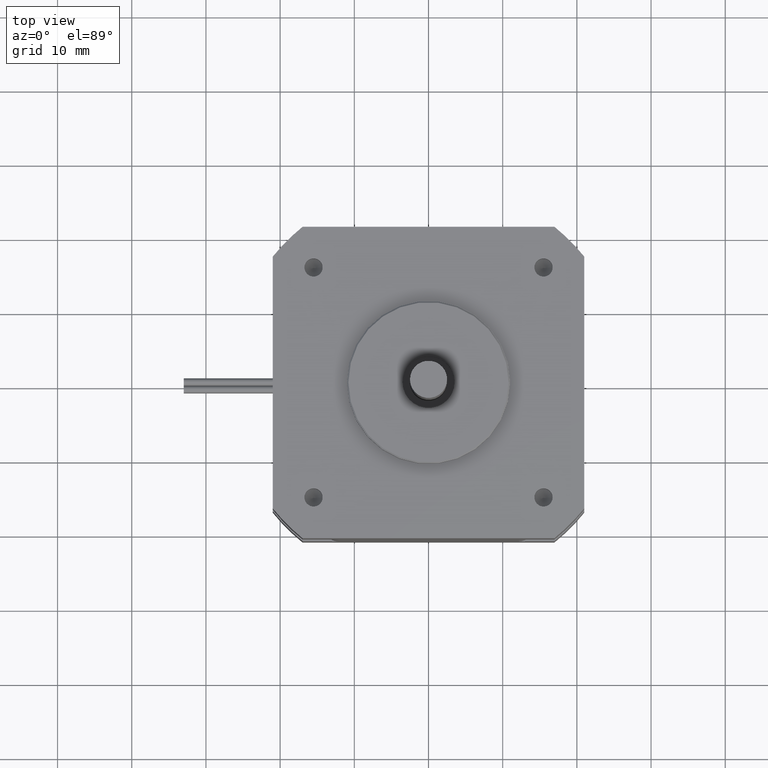
[diagram: clean part render]
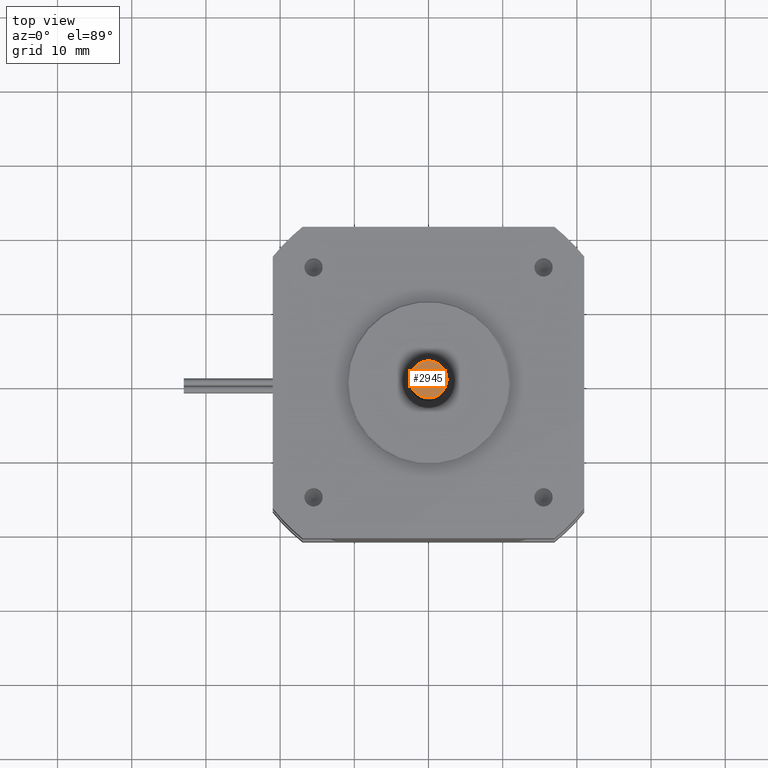
[diagram: same view with one face highlighted and labeled with its STEP entity id]
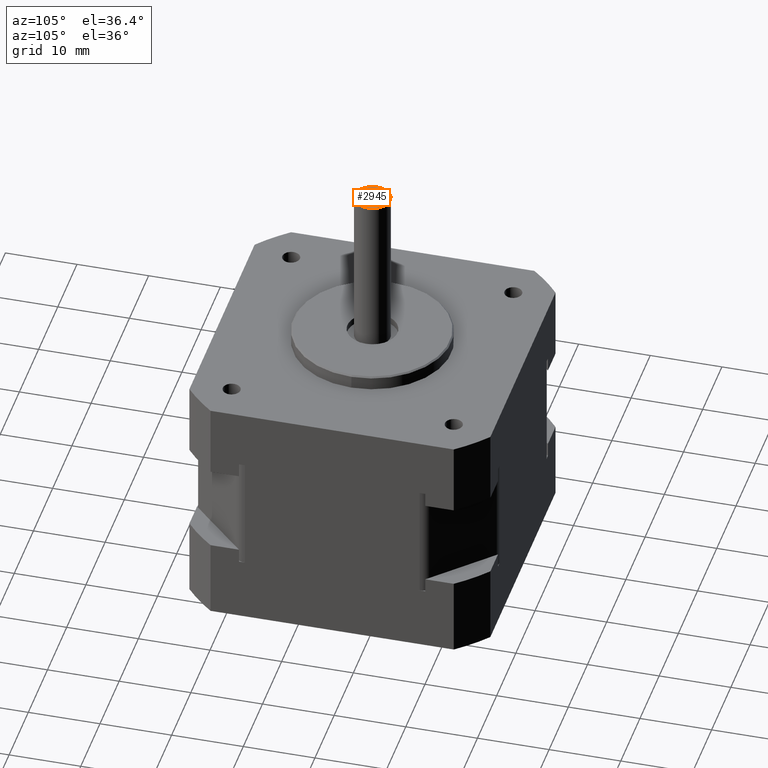
[diagram: same view with one face highlighted and labeled with its STEP entity id]
A machine part, top view. The second image highlights one B-rep face of the part: STEP entity #2945.
A second angle (auxiliary view) of the same face is appended — the face is thin or edge-on in the first view.
In plain terms, the highlighted planar face has unit normal (0, 0, 1).
Its self-contained STEP definition (entity closure, byte-faithful):
#229=PLANE('',#3350);
#425=FACE_OUTER_BOUND('',#689,.T.);
#689=EDGE_LOOP('',(#2500));
#1183=CIRCLE('',#3347,2.5);
#1420=VERTEX_POINT('',#5069);
#1771=EDGE_CURVE('',#1420,#1420,#1183,.T.);
#2500=ORIENTED_EDGE('',*,*,#1771,.T.);
#2945=ADVANCED_FACE('',(#425),#229,.T.);
#3347=AXIS2_PLACEMENT_3D('',#5070,#4278,#4279);
#3350=AXIS2_PLACEMENT_3D('',#5074,#4284,#4285);
#4278=DIRECTION('center_axis',(0.,0.,1.));
#4279=DIRECTION('ref_axis',(1.,0.,0.));
#4284=DIRECTION('center_axis',(0.,0.,1.));
#4285=DIRECTION('ref_axis',(0.,-1.,0.));
#5069=CARTESIAN_POINT('',(-2.5,-3.97972753009493E-15,40.35));
#5070=CARTESIAN_POINT('Origin',(4.44089209850063E-15,-3.67356583030809E-15,
40.35));
#5074=CARTESIAN_POINT('Origin',(4.55892415886829E-15,-3.67356583030809E-15,
40.35));